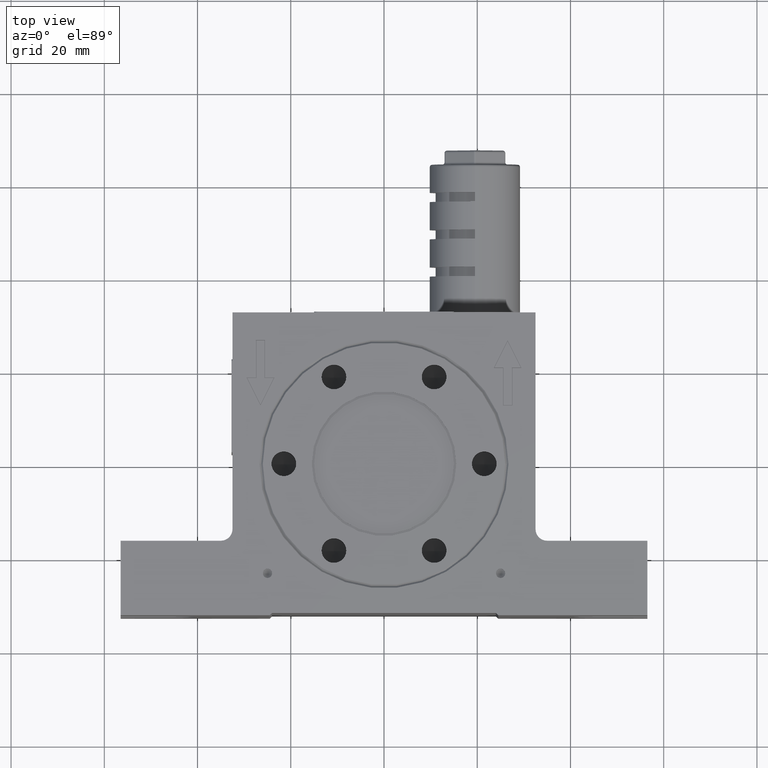
[diagram: clean part render]
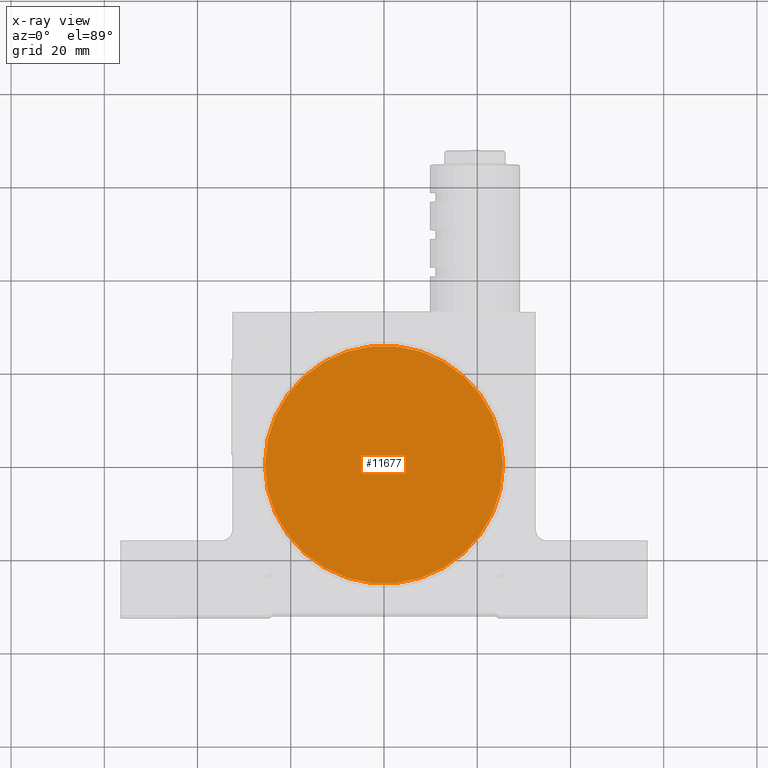
[diagram: x-ray — body ghosted, one internal face saturated and labeled with its STEP entity id]
A machine part, top view, then the same camera in x-ray: the body is ghosted and one INTERNAL B-rep face — a face not visible from any outside direction — is saturated and labeled: STEP entity #11677.
In plain terms, the highlighted planar face has unit normal (0, 0, 1).
Its self-contained STEP definition (entity closure, byte-faithful):
#166 = ORIENTED_EDGE ( 'NONE', *, *, #15502, .T. ) ;
#1055 = EDGE_LOOP ( 'NONE', ( #19525, #166 ) ) ;
#3387 = AXIS2_PLACEMENT_3D ( 'NONE', #15042, #13644, #20113 ) ;
#3592 = DIRECTION ( 'NONE',  ( -0.0000000000000000000, -0.0000000000000000000, -1.000000000000000000 ) ) ;
#5687 = AXIS2_PLACEMENT_3D ( 'NONE', #16316, #6435, #17978 ) ;
#6435 = DIRECTION ( 'NONE',  ( -0.0000000000000000000, -0.0000000000000000000, -1.000000000000000000 ) ) ;
#6464 = CIRCLE ( 'NONE', #14106, 25.53500000000000000 ) ;
#7800 = CIRCLE ( 'NONE', #5687, 25.53500000000000000 ) ;
#7988 = CARTESIAN_POINT ( 'NONE',  ( -25.53500000000000000, 3.139382069614240100E-015, 9.500000000000000000 ) ) ;
#10003 = EDGE_CURVE ( 'NONE', #15448, #17028, #7800, .T. ) ;
#11677 = ADVANCED_FACE ( 'NONE', ( #16293 ), #11695, .F. ) ;
#11695 = PLANE ( 'NONE',  #3387 ) ;
#13197 = CARTESIAN_POINT ( 'NONE',  ( 25.53500000000000000, 0.0000000000000000000, 9.500000000000000000 ) ) ;
#13630 = DIRECTION ( 'NONE',  ( 1.000000000000000000, 0.0000000000000000000, 0.0000000000000000000 ) ) ;
#13644 = DIRECTION ( 'NONE',  ( 0.0000000000000000000, 0.0000000000000000000, 1.000000000000000000 ) ) ;
#14106 = AXIS2_PLACEMENT_3D ( 'NONE', #18439, #3592, #13630 ) ;
#15042 = CARTESIAN_POINT ( 'NONE',  ( 0.0000000000000000000, 0.0000000000000000000, 9.500000000000000000 ) ) ;
#15448 = VERTEX_POINT ( 'NONE', #13197 ) ;
#15502 = EDGE_CURVE ( 'NONE', #17028, #15448, #6464, .T. ) ;
#16293 = FACE_OUTER_BOUND ( 'NONE', #1055, .T. ) ;
#16316 = CARTESIAN_POINT ( 'NONE',  ( 0.0000000000000000000, 0.0000000000000000000, 9.500000000000000000 ) ) ;
#17028 = VERTEX_POINT ( 'NONE', #7988 ) ;
#17978 = DIRECTION ( 'NONE',  ( 1.000000000000000000, 0.0000000000000000000, 0.0000000000000000000 ) ) ;
#18439 = CARTESIAN_POINT ( 'NONE',  ( 0.0000000000000000000, 0.0000000000000000000, 9.500000000000000000 ) ) ;
#19525 = ORIENTED_EDGE ( 'NONE', *, *, #10003, .T. ) ;
#20113 = DIRECTION ( 'NONE',  ( 1.000000000000000000, 0.0000000000000000000, 0.0000000000000000000 ) ) ;